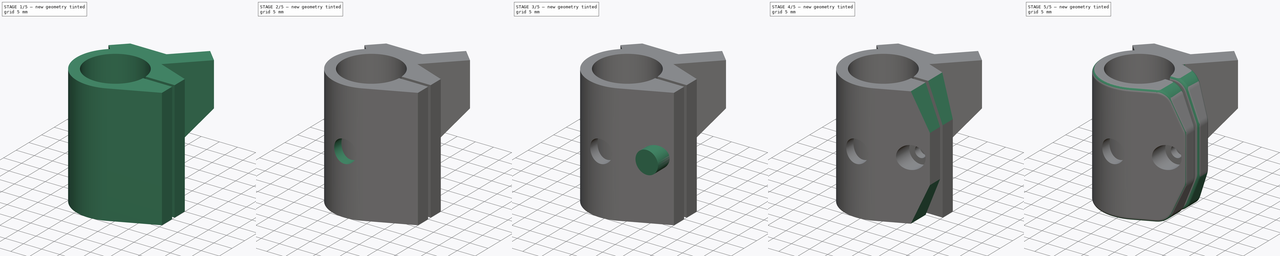
[diagram: build sequence overview — one tinted view per stage of 5, left to right]
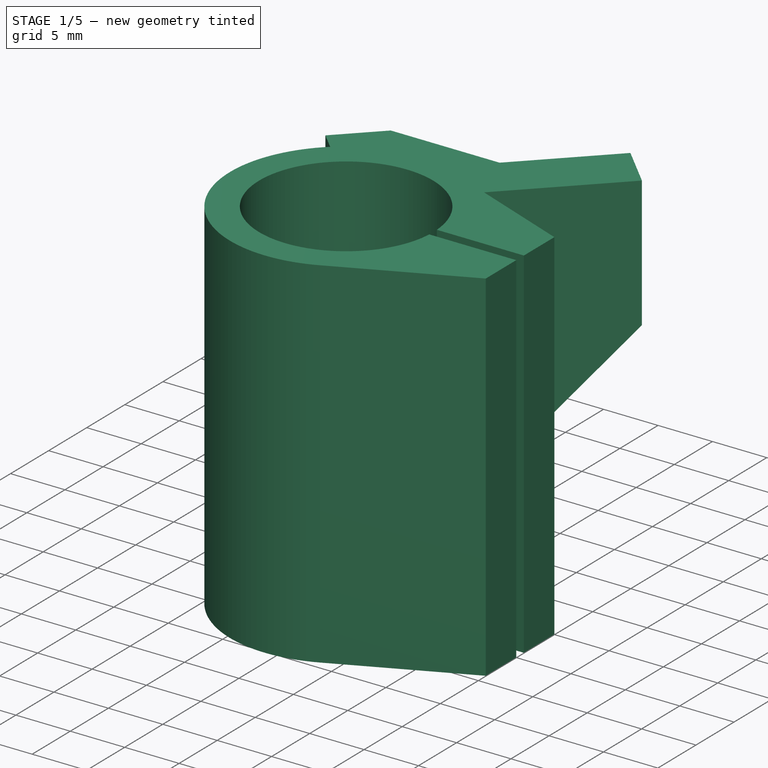
[diagram: stage 1 of 5 — iso view after this stage's code; geometry added in this stage tinted green]
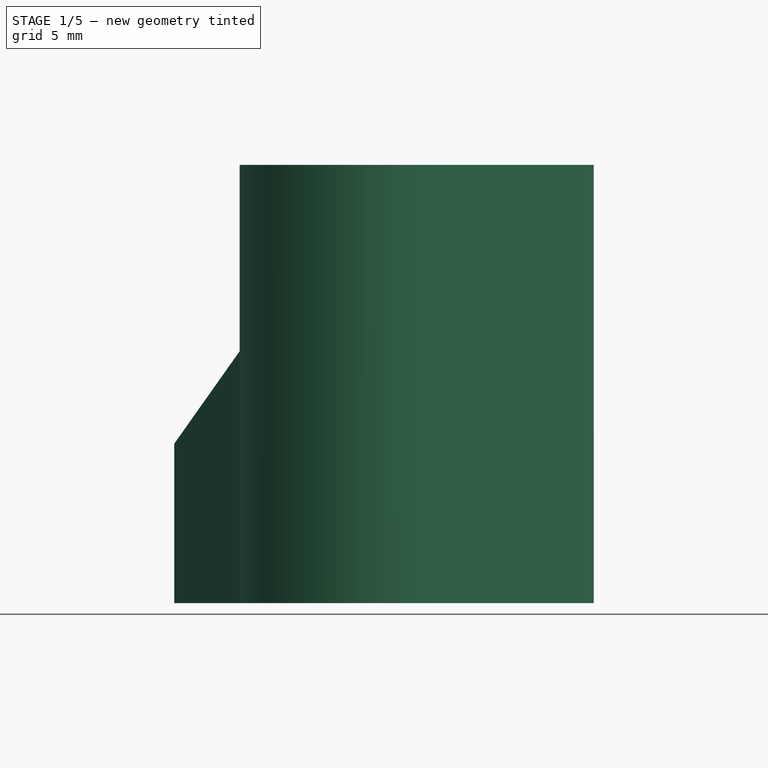
[diagram: stage 1 of 5 — front view after this stage's code; geometry added in this stage tinted green]
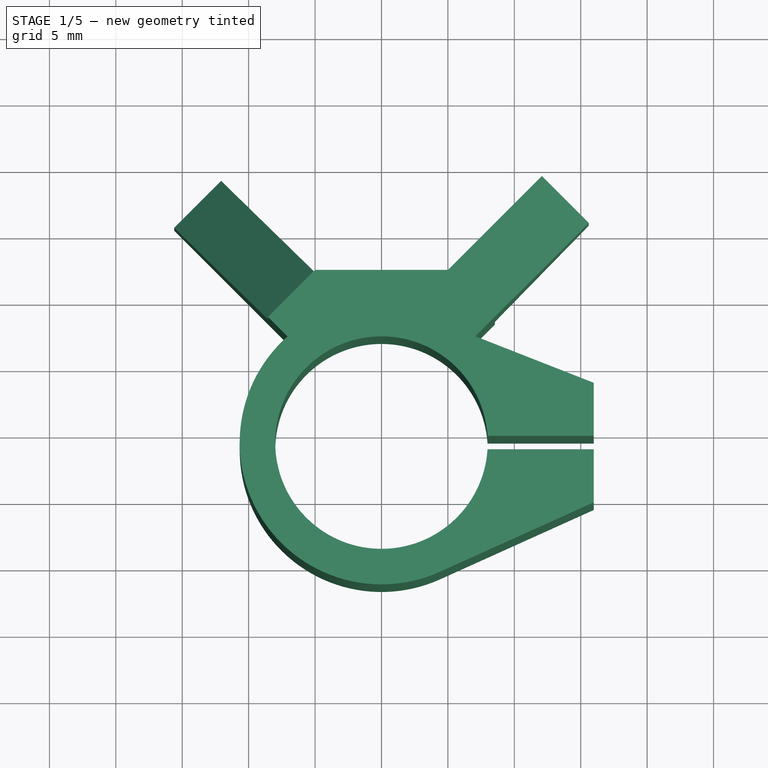
[diagram: stage 1 of 5 — top view after this stage's code; geometry added in this stage tinted green]
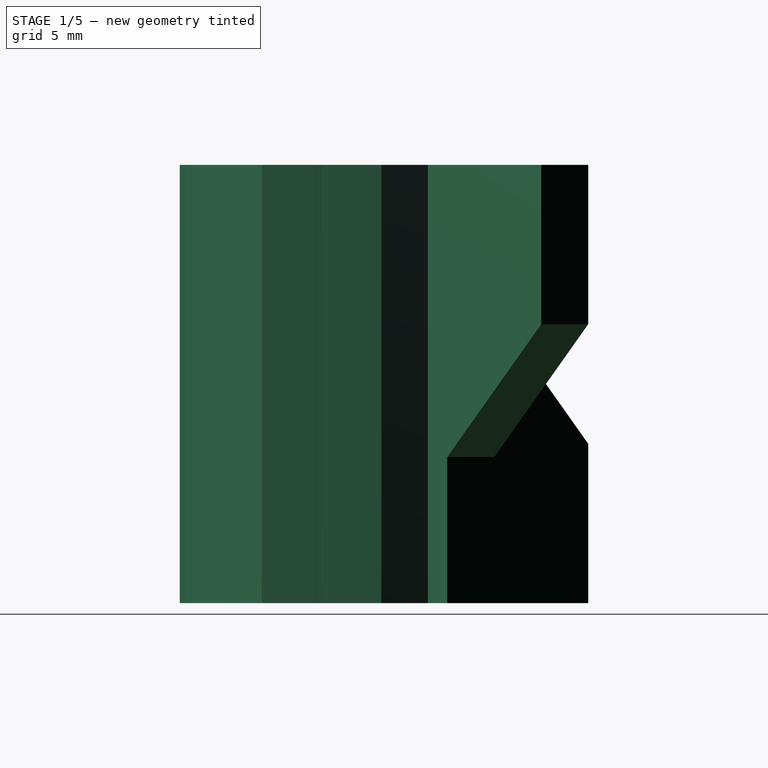
[diagram: stage 1 of 5 — right view after this stage's code; geometry added in this stage tinted green]
FCSTD DOCUMENT  (FreeCAD 0.16RUnknown)
Label: pen-mount.001
License: All rights reserved
LicenseURL: http://en.wikipedia.org/wiki/All_rights_reserved
objects: Sketcher::SketchObject×8, Part::Extrusion×4, PartDesign::Pocket×4, Part::Cut×3, Part::Chamfer×3, Part::Fillet×2
note: 28 computed .brp shape members not serialized (recipe doc carries the construction recipe); baked Part::Feature solids carry a one-line shape summary decoded from their .brp

FEATURE [Sketcher::SketchObject] Sketch
  sketch-geometry (21):
    g0: LineSegment StartX=-12.0711 StartY=9.14214 StartZ=0 EndX=-5 EndY=2.07107 EndZ=0
    g1: LineSegment StartX=-5 StartY=2.07107 StartZ=0 EndX=5 EndY=2.07107 EndZ=0
    g2: LineSegment StartX=5 StartY=2.07107 StartZ=0 EndX=12.0711 EndY=9.14214 EndZ=0
    g3: LineSegment StartX=12.0711 StartY=9.14214 StartZ=0 EndX=15.6066 EndY=5.6066 EndZ=0
    g4: LineSegment StartX=15.6066 StartY=5.6066 StartZ=0 EndX=7.07107 EndY=-2.92893 EndZ=0
    g5: LineSegment [constr] StartX=7.07107 StartY=-2.92893 StartZ=0 EndX=-7.07107 EndY=-2.92893 EndZ=0
    g6: LineSegment StartX=-7.07107 StartY=-2.92893 StartZ=0 EndX=-15.6066 EndY=5.6066 EndZ=0
    g7: LineSegment StartX=-15.6066 StartY=5.6066 StartZ=0 EndX=-12.0711 EndY=9.14214 EndZ=0
    g8: LineSegment [constr] StartX=0 StartY=2.07107 StartZ=0 EndX=0 EndY=-2.92893 EndZ=0
    g9: LineSegment [constr] StartX=-7.07107 StartY=-2.92893 StartZ=0 EndX=5 EndY=2.07107 EndZ=0
    g10: LineSegment [constr] StartX=-5 StartY=2.07107 StartZ=0 EndX=7.07107 EndY=-2.92893 EndZ=0
    g11: GeomPoint [constr] X=0 Y=0 Z=0
    g12: ArcOfCircle CenterX=0 CenterY=-10.9289 CenterZ=0 NormalX=0 NormalY=0 NormalZ=1 Radius=8 StartAngle=0.0625408 EndAngle=6.22064
    g13: LineSegment [constr] StartX=7.98436 StartY=-10.4289 StartZ=0 EndX=7.98436 EndY=-11.4289 EndZ=0
    g14: LineSegment StartX=7.98436 StartY=-11.4289 StartZ=0 EndX=15.9844 EndY=-11.4289 EndZ=0
    g15: LineSegment StartX=15.9844 StartY=-11.4289 StartZ=0 EndX=15.9844 EndY=-15.4289 EndZ=0
    g16: LineSegment StartX=15.9844 StartY=-15.4289 StartZ=0 EndX=4.39224 EndY=-20.6607 EndZ=0
    g17: LineSegment StartX=7.98436 StartY=-10.4289 StartZ=0 EndX=15.9844 EndY=-10.4289 EndZ=0
    g18: LineSegment StartX=15.9844 StartY=-10.4289 StartZ=0 EndX=15.9844 EndY=-6.42893 EndZ=0
    g19: LineSegment StartX=15.9844 StartY=-6.42893 StartZ=0 EndX=7.07107 EndY=-2.92893 EndZ=0
    g20: ArcOfCircle CenterX=0 CenterY=-10.9289 CenterZ=0 NormalX=0 NormalY=0 NormalZ=1 Radius=10.6771 StartAngle=2.29464 EndAngle=5.13635
  constraints (59):
    c: Coincident(g0,g1)
    c: Horizontal(g1)
    c: Coincident(g1,g2)
    c: Coincident(g2,g3)
    c: Coincident(g3,g4)
    c: Coincident(g4,g5)
    c: Horizontal(g5)
    c: Coincident(g5,g6)
    c: Coincident(g6,g7)
    c: Coincident(g0,g7)
    c: Perpendicular(g0,g7)
    c: Parallel(g0,g6)
    c: Parallel(g2,g4)
    c: Perpendicular(g3,g2)
    c: Equal(g0,g2)
    c: Equal(g7,g3)
    c: Angle(g1,g0) = 2.35619
    c: Angle(g2,g1) = 2.35619
    c: PointOnObject(g8,g1)
    c: Vertical(g8)
    c: PointOnObject(g8,g5)
    c: Equal(g8,g3)
    c: Coincident(g4,g10)
    c: Coincident(g5,g9)
    c: Coincident(g0,g10)
    c: Coincident(g1,g9)
    c: PointOnObject(g11,g9)
    c: PointOnObject(g11,g10)
    c: PointOnObject(g11,g8)
    c: Coincident(g11,g-1)
    c: DistanceX(g1,g1) = 10
    c: Distance(g3) = 5
    c: Distance(g0) = 10
    c: Vertical(g13)
    c: Coincident(g12,g13)
    c: Coincident(g12,g13)
    c: DistanceY(g13,g13) = 1
    c: Radius(g12) = 8
    c: PointOnObject(g12,g-2)
    c: Horizontal(g14)
    c: Coincident(g14,g15)
    c: Vertical(g15)
    c: Coincident(g15,g16)
    c: Horizontal(g17)
    c: Coincident(g17,g18)
    c: Vertical(g18)
    c: Coincident(g18,g19)
    c: Coincident(g12,g17)
    c: Coincident(g12,g14)
    c: Equal(g14,g17)
    c: Equal(g15,g18)
    c: Coincident(g4,g19)
    c: Coincident(g16,g20)
    c: Coincident(g12,g20)
    c: Coincident(g5,g20)
    c: PointOnObject(g8,g12)
    c: Tangent(g16,g20)
    c: DistanceY(g18,g18) = 4
    c: DistanceX(g14,g14) = 8
FEATURE [Part::Extrusion] Extrude
  Base = -> Sketch
  Dir = (0,0,33)
  Solid = true
FEATURE [Sketcher::SketchObject] Sketch001
  ExternalGeometry = -> [Extrude]
  Placement = pos=(-1.46447,-1.46447,0) rot=(0.281085,0.678598,0.678598;2.59356rad)
  Support = -> Extrude [Face3]
  sketch-geometry (4):
    g0: LineSegment StartX=15 StartY=33 StartZ=0 EndX=5 EndY=33 EndZ=0
    g1: LineSegment StartX=5 StartY=33 StartZ=0 EndX=5 EndY=22 EndZ=0
    g2: LineSegment StartX=5 StartY=22 StartZ=0 EndX=15 EndY=12 EndZ=0
    g3: LineSegment StartX=15 StartY=12 StartZ=0 EndX=15 EndY=33 EndZ=0
  constraints (11):
    c: Horizontal(g0)
    c: Coincident(g0,g1)
    c: Vertical(g1)
    c: Coincident(g1,g2)
    c: Coincident(g2,g3)
    c: Vertical(g3)
    c: Coincident(g0,g3)
    c: Coincident(g0,g-4)
    c: Coincident(g0,g-3)
    c: DistanceY(g-4,g2) = 12
    c: Angle(g-4,g2) = 0.785398
FEATURE [PartDesign::Pocket] Pocket
  Length = 5
  Sketch = -> Sketch001
  Type = 1
FEATURE [Sketcher::SketchObject] Sketch002
  ExternalGeometry = -> [Pocket]
  Placement = pos=(1.46447,-1.46447,0) rot=(-0.281085,0.678598,0.678598;3.68962rad)
  Support = -> Pocket [Face10]
  sketch-geometry (4):
    g0: LineSegment StartX=-15 StartY=0 StartZ=0 EndX=-5 EndY=0 EndZ=0
    g1: LineSegment StartX=-5 StartY=0 StartZ=0 EndX=-5 EndY=11 EndZ=0
    g2: LineSegment StartX=-5 StartY=11 StartZ=0 EndX=-15 EndY=21 EndZ=0
    g3: LineSegment StartX=-15 StartY=21 StartZ=0 EndX=-15 EndY=0 EndZ=0
  constraints (11):
    c: Horizontal(g0)
    c: Coincident(g0,g1)
    c: Vertical(g1)
    c: Coincident(g1,g2)
    c: Coincident(g2,g3)
    c: Vertical(g3)
    c: Coincident(g0,g3)
    c: Coincident(g0,g-3)
    c: Coincident(g0,g-4)
    c: Angle(g3,g2) = 0.785398
    c: DistanceY(g2,g-3) = 12
FEATURE [PartDesign::Pocket] Pocket001
  Length = 0
  Sketch = -> Sketch002
  Type = 3
  UpToFace = -> Pocket [Face12]
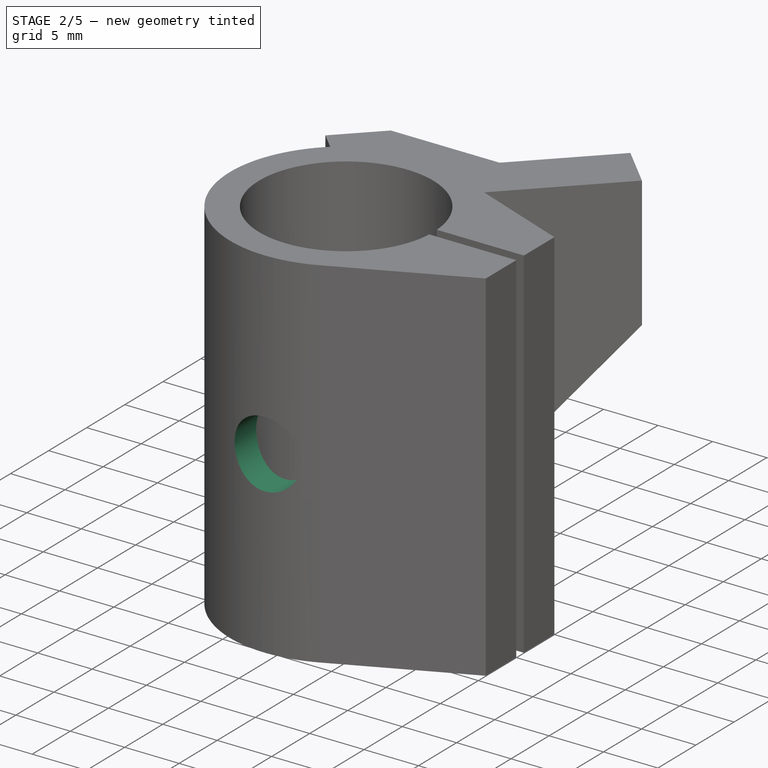
[diagram: stage 2 of 5 — iso view after this stage's code; geometry added in this stage tinted green]
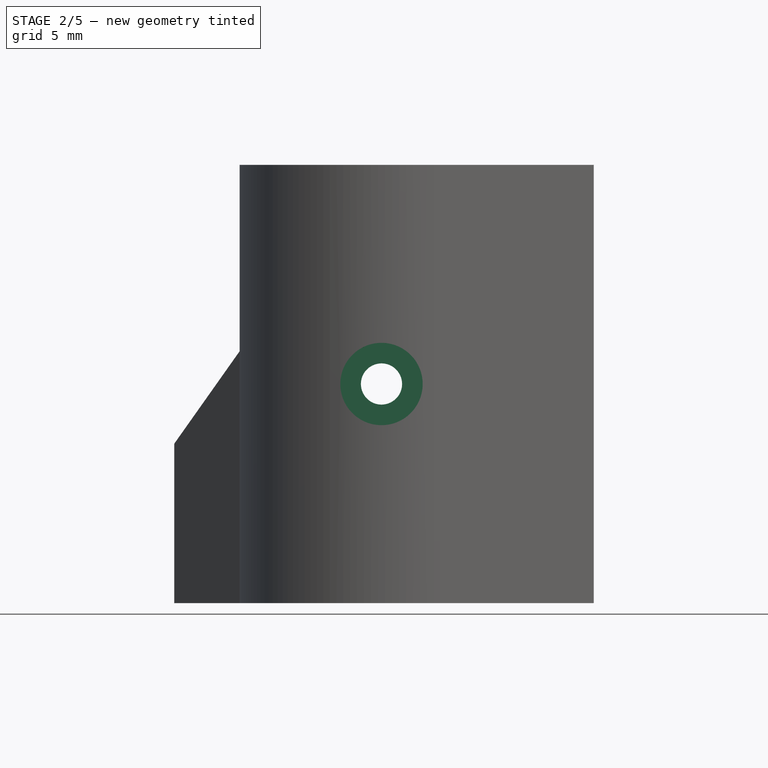
[diagram: stage 2 of 5 — front view after this stage's code; geometry added in this stage tinted green]
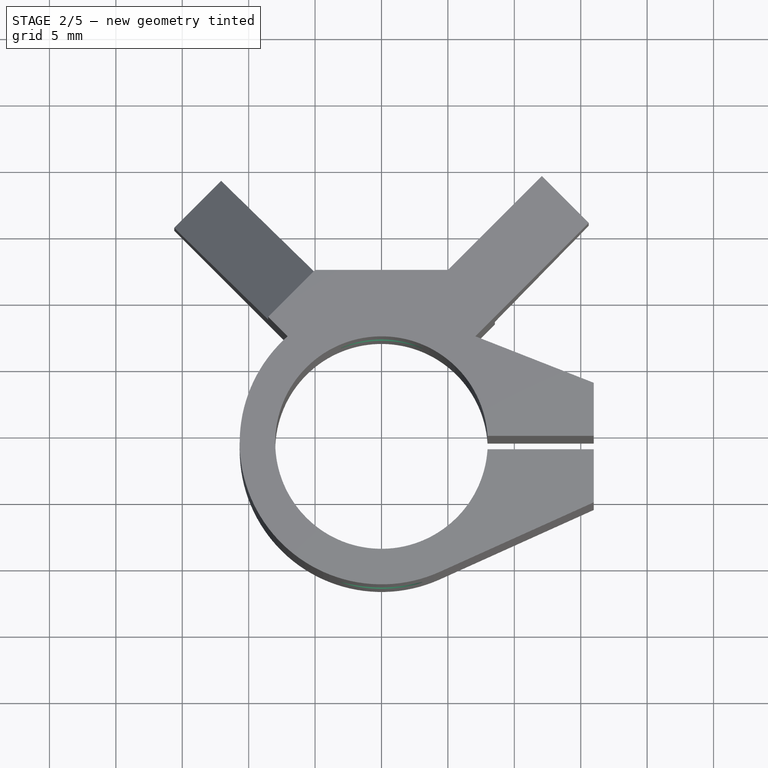
[diagram: stage 2 of 5 — top view after this stage's code; geometry added in this stage tinted green]
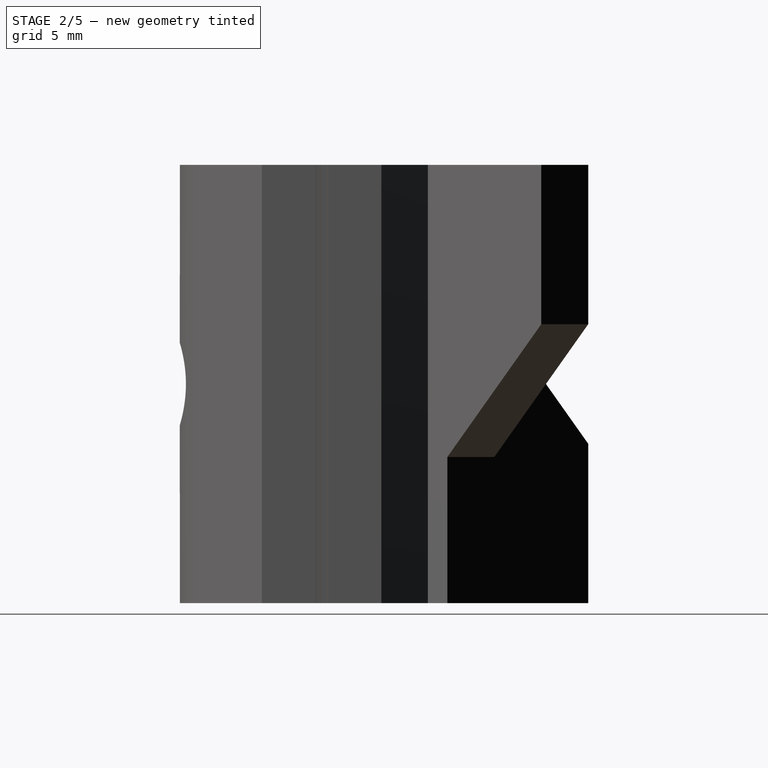
[diagram: stage 2 of 5 — right view after this stage's code; geometry added in this stage tinted green]
FEATURE [Sketcher::SketchObject] Sketch003
  ExternalGeometry = -> [Pocket001]
  Placement = pos=(0,2.07107,0) rot=(0,0.707107,0.707107;3.14159rad)
  Support = -> Pocket001 [Face17]
  sketch-geometry (3):
    g0: LineSegment [constr] StartX=-5 StartY=33 StartZ=0 EndX=0 EndY=16.5 EndZ=0
    g1: LineSegment [constr] StartX=0 StartY=16.5 StartZ=0 EndX=5 EndY=0 EndZ=0
    g2: Circle CenterX=0 CenterY=16.5 CenterZ=0 NormalX=0 NormalY=0 NormalZ=1 Radius=1.55
  constraints (7):
    c: Coincident(g0,g1)
    c: Coincident(g1,g-4)
    c: Coincident(g0,g-3)
    c: Equal(g0,g1)
    c: Parallel(g0,g1)
    c: Coincident(g0,g2)
    c: Radius(g2) = 1.55
FEATURE [PartDesign::Pocket] Pocket002
  Length = 0
  Sketch = -> Sketch003
  Type = 3
  UpToFace = -> Pocket001 [Face11]
FEATURE [Sketcher::SketchObject] Sketch004
  ExternalGeometry = -> [Pocket002]
  Placement = pos=(0,2.07107,0) rot=(0,0.707107,0.707107;3.14159rad)
  Support = -> Pocket002 [Face17]
  sketch-geometry (1):
    g0: Circle CenterX=0 CenterY=16.5 CenterZ=0 NormalX=0 NormalY=0 NormalZ=1 Radius=3.1
  constraints (2):
    c: Coincident(g0,g-3)
    c: Radius(g0) = 3.1
FEATURE [Part::Extrusion] Extrude001
  Base = -> Sketch004
  Dir = (0,-25,0)
  Placement = pos=(0,-2,0) rot=(0,0,1;0rad)
  Solid = true
FEATURE [Part::Cut] Cut
  Base = -> Pocket002
  Tool = -> Extrude001
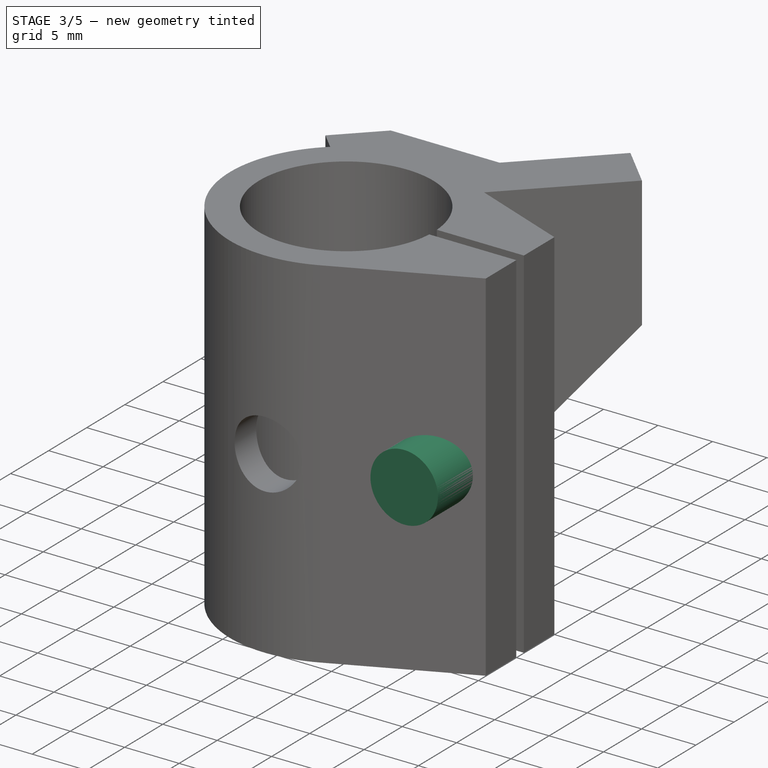
[diagram: stage 3 of 5 — iso view after this stage's code; geometry added in this stage tinted green]
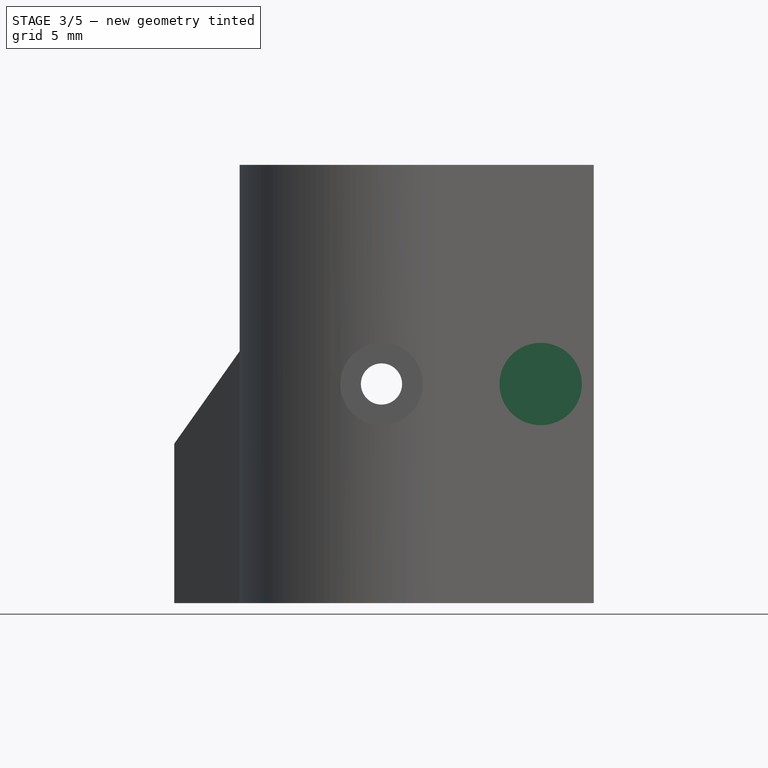
[diagram: stage 3 of 5 — front view after this stage's code; geometry added in this stage tinted green]
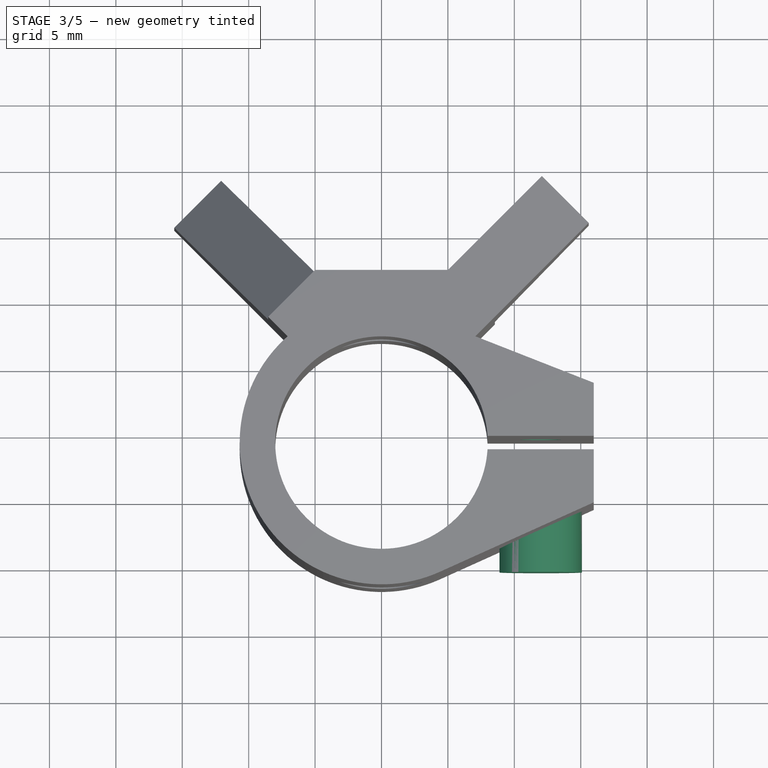
[diagram: stage 3 of 5 — top view after this stage's code; geometry added in this stage tinted green]
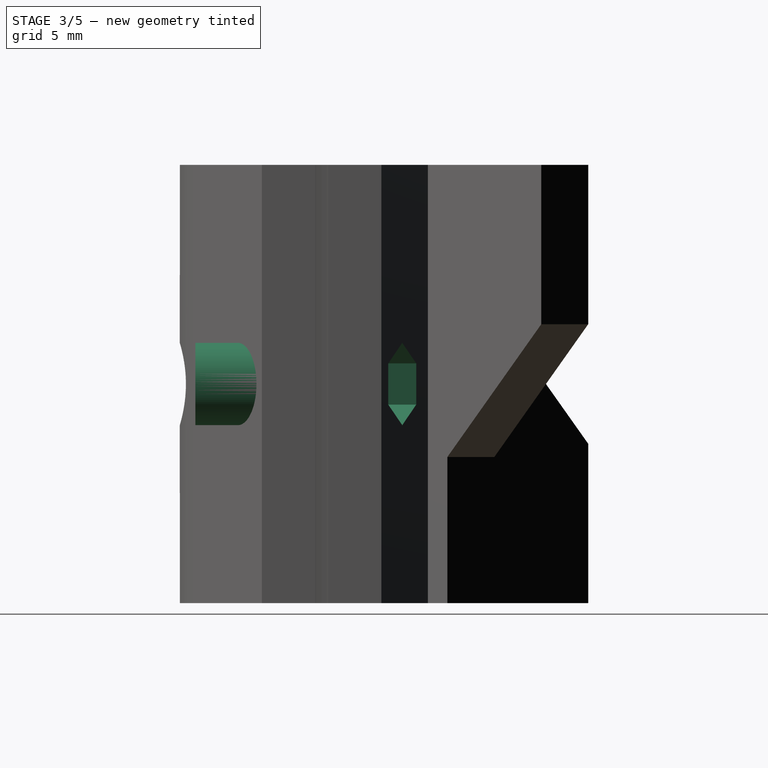
[diagram: stage 3 of 5 — right view after this stage's code; geometry added in this stage tinted green]
FEATURE [Sketcher::SketchObject] Sketch005
  ExternalGeometry = -> [Cut]
  Placement = pos=(0,-10.4289,0) rot=(1,0,0;1.5708rad)
  Support = -> Cut [Face12]
  sketch-geometry (3):
    g0: LineSegment [constr] StartX=7.98436 StartY=0 StartZ=0 EndX=11.9844 EndY=16.5 EndZ=0
    g1: LineSegment [constr] StartX=11.9844 StartY=16.5 StartZ=0 EndX=15.9844 EndY=33 EndZ=0
    g2: Circle CenterX=11.9844 CenterY=16.5 CenterZ=0 NormalX=0 NormalY=0 NormalZ=1 Radius=1.55
  constraints (7):
    c: Coincident(g0,g1)
    c: Coincident(g1,g-3)
    c: Coincident(g0,g-4)
    c: Equal(g0,g1)
    c: Parallel(g0,g1)
    c: Coincident(g0,g2)
    c: Radius(g2) = 1.55
FEATURE [PartDesign::Pocket] Pocket003
  Length = 15
  Midplane = true
  Sketch = -> Sketch005
  Type = 0
FEATURE [Sketcher::SketchObject] Sketch006
  ExternalGeometry = -> [Pocket003]
  Placement = pos=(0,-10.4289,0) rot=(1,0,0;1.5708rad)
  Support = -> Pocket003 [Face12]
  sketch-geometry (7):
    g0: LineSegment StartX=11.9844 StartY=19.6 StartZ=0 EndX=9.29968 EndY=18.05 EndZ=0
    g1: LineSegment StartX=9.29968 StartY=18.05 StartZ=0 EndX=9.29968 EndY=14.95 EndZ=0
    g2: LineSegment StartX=9.29968 StartY=14.95 StartZ=0 EndX=11.9844 EndY=13.4 EndZ=0
    g3: LineSegment StartX=11.9844 StartY=13.4 StartZ=0 EndX=14.669 EndY=14.95 EndZ=0
    g4: LineSegment StartX=14.669 StartY=14.95 StartZ=0 EndX=14.669 EndY=18.05 EndZ=0
    g5: LineSegment StartX=14.669 StartY=18.05 StartZ=0 EndX=11.9844 EndY=19.6 EndZ=0
    g6: Circle [constr] CenterX=11.9844 CenterY=16.5 CenterZ=0 NormalX=0 NormalY=0 NormalZ=1 Radius=3.1
  constraints (16):
    c: Coincident(g0,g1)
    c: Coincident(g1,g2)
    c: Coincident(g2,g3)
    c: Coincident(g3,g4)
    c: Coincident(g4,g5)
    c: Coincident(g5,g0)
    c: Equal(g0, g1-g5) x5
    c: PointOnObject(g0,g6)
    c: PointOnObject(g1,g6)
    c: PointOnObject(g2,g6)
    c: PointOnObject(g3,g6)
    c: PointOnObject(g4,g6)
    c: PointOnObject(g5,g6)
    c: Vertical(g4)
    c: Coincident(g6,g-3)
    c: Radius(g6) = 3.1
FEATURE [Sketcher::SketchObject] Sketch007
  ExternalGeometry = -> [Pocket003]
  Placement = pos=(0,-11.4289,0) rot=(0,0.707107,0.707107;3.14159rad)
  Support = -> Pocket003 [Face10]
  sketch-geometry (1):
    g0: Circle CenterX=-11.9844 CenterY=16.5 CenterZ=0 NormalX=0 NormalY=0 NormalZ=1 Radius=3.1
  constraints (2):
    c: Coincident(g0,g-3)
    c: Radius(g0) = 3.1
FEATURE [Part::Extrusion] Extrude002
  Base = -> Sketch006
  Dir = (0,7,0)
  Placement = pos=(0,2,0) rot=(0,0,1;0rad)
  Solid = true
FEATURE [Part::Extrusion] Extrude003
  Base = -> Sketch007
  Dir = (0,-7,0)
  Placement = pos=(0,-2,0) rot=(0,0,1;0rad)
  Solid = true
FEATURE [Part::Cut] Cut001
  Base = -> Pocket003
  Tool = -> Extrude002
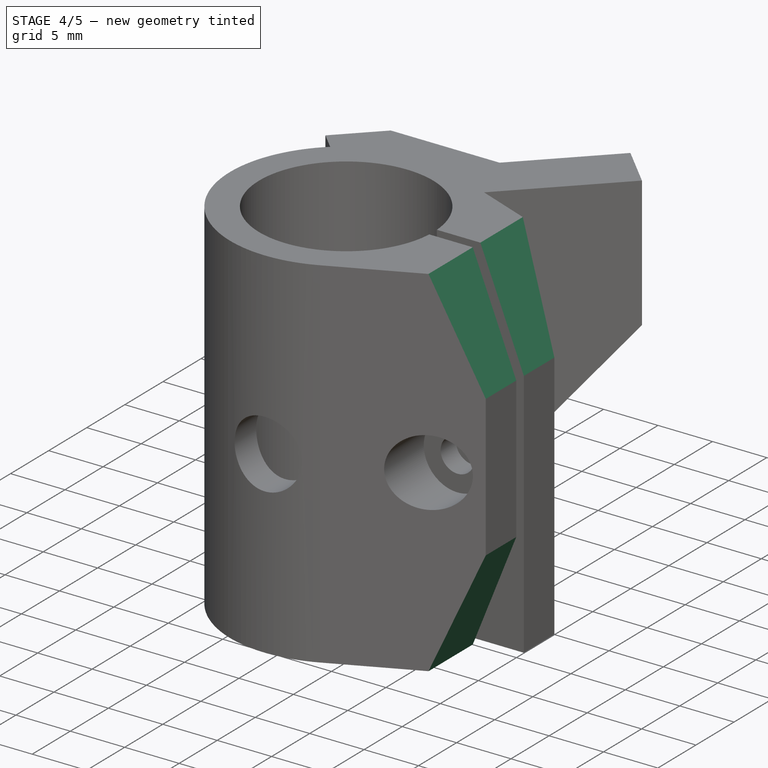
[diagram: stage 4 of 5 — iso view after this stage's code; geometry added in this stage tinted green]
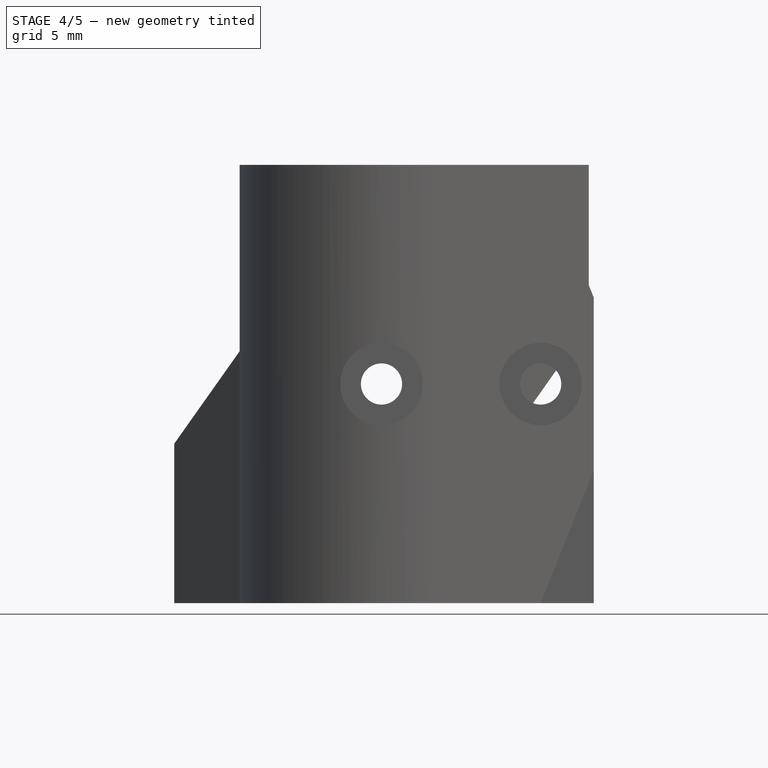
[diagram: stage 4 of 5 — front view after this stage's code; geometry added in this stage tinted green]
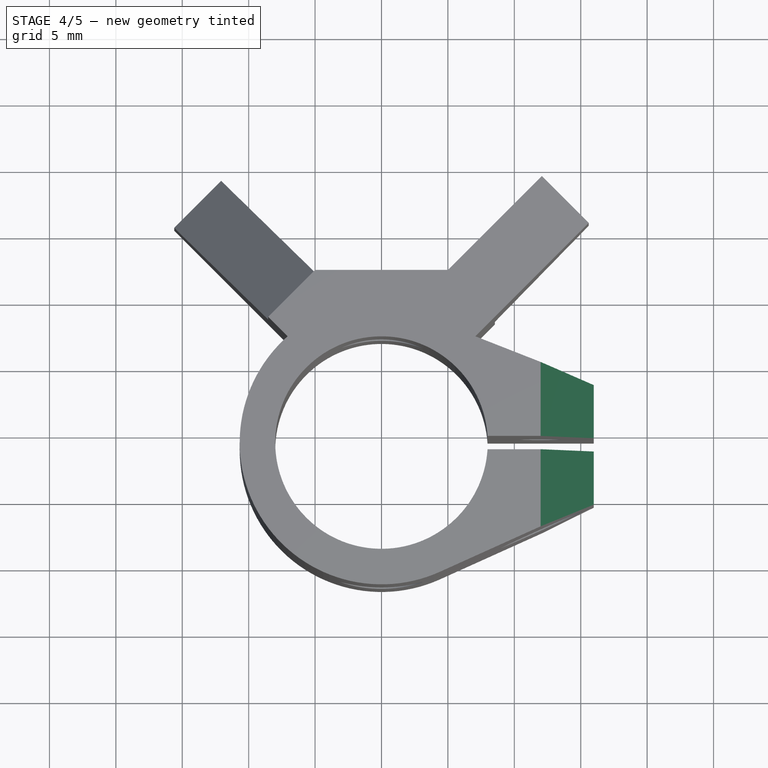
[diagram: stage 4 of 5 — top view after this stage's code; geometry added in this stage tinted green]
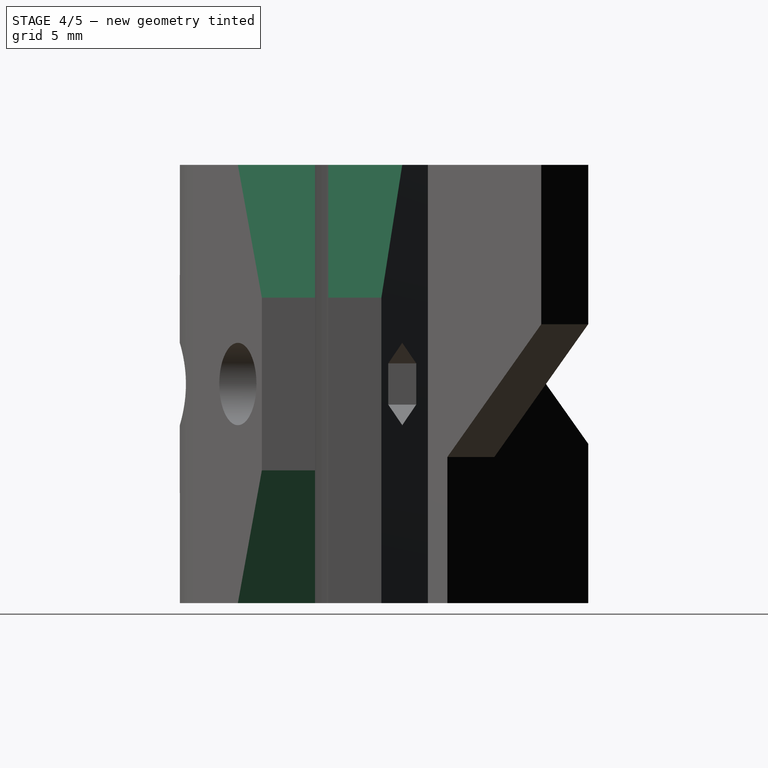
[diagram: stage 4 of 5 — right view after this stage's code; geometry added in this stage tinted green]
FEATURE [Part::Cut] Cut002
  Base = -> Cut001
  Tool = -> Extrude003
FEATURE [Part::Chamfer] Chamfer
  Base = -> Cut002
  Edges = 2 edges: [Edge28 r1=4 r2=10,Edge32 r1=4 r2=10]
FEATURE [Part::Chamfer] Chamfer001
  Base = -> Chamfer
  Edges = 1 edges: [Edge66 r1=10 r2=4]
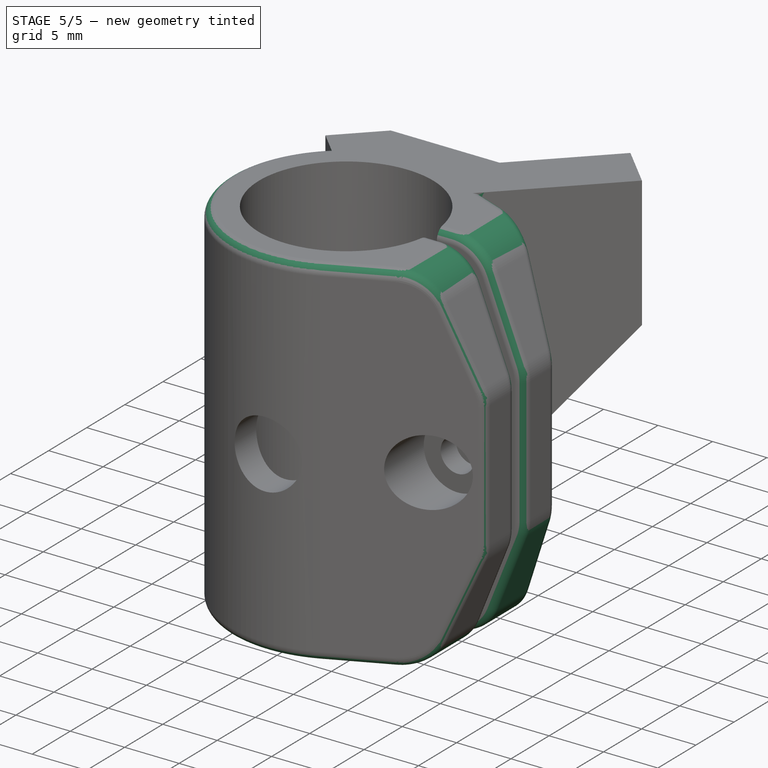
[diagram: stage 5 of 5 — iso view after this stage's code; geometry added in this stage tinted green]
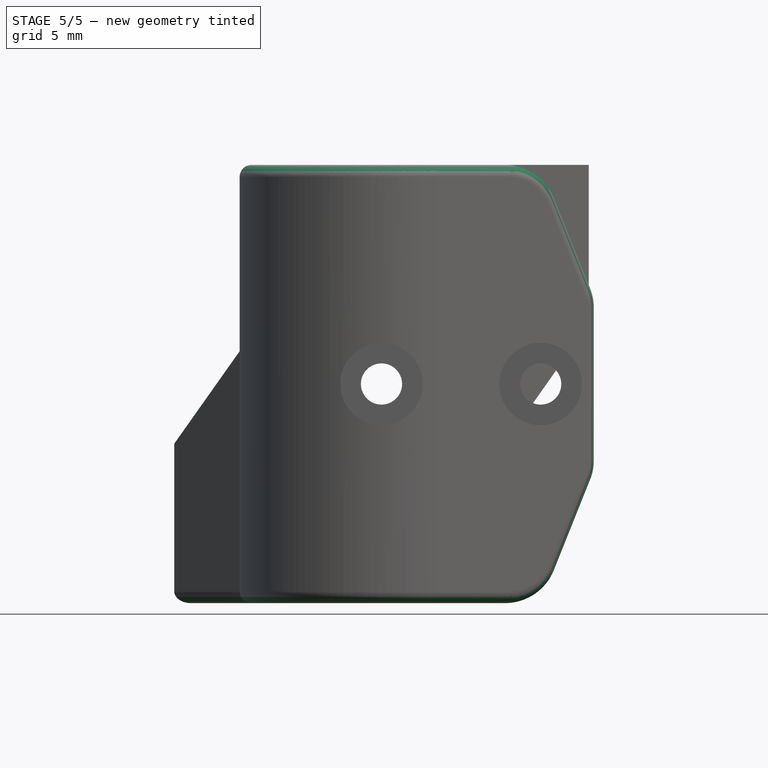
[diagram: stage 5 of 5 — front view after this stage's code; geometry added in this stage tinted green]
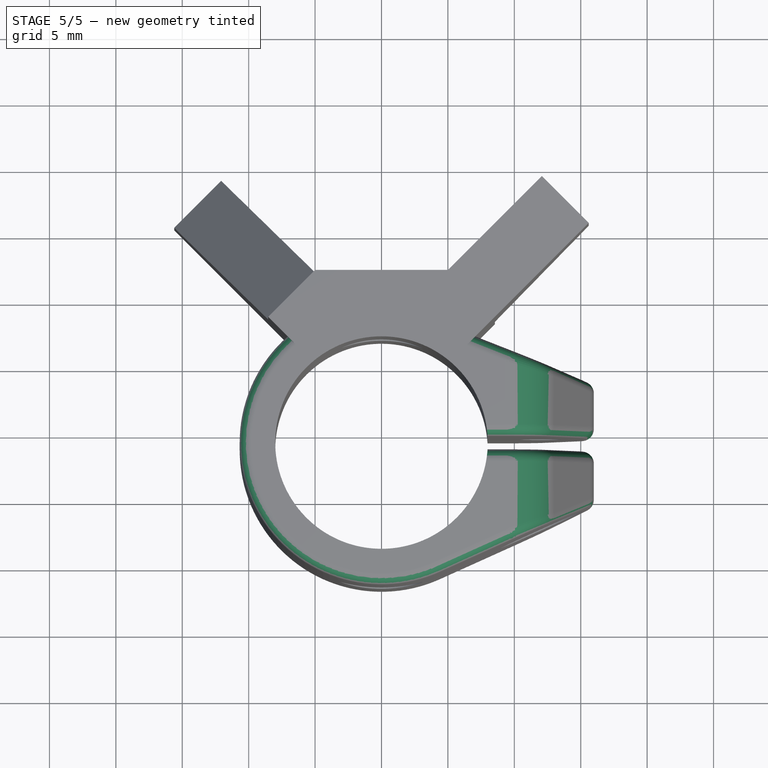
[diagram: stage 5 of 5 — top view after this stage's code; geometry added in this stage tinted green]
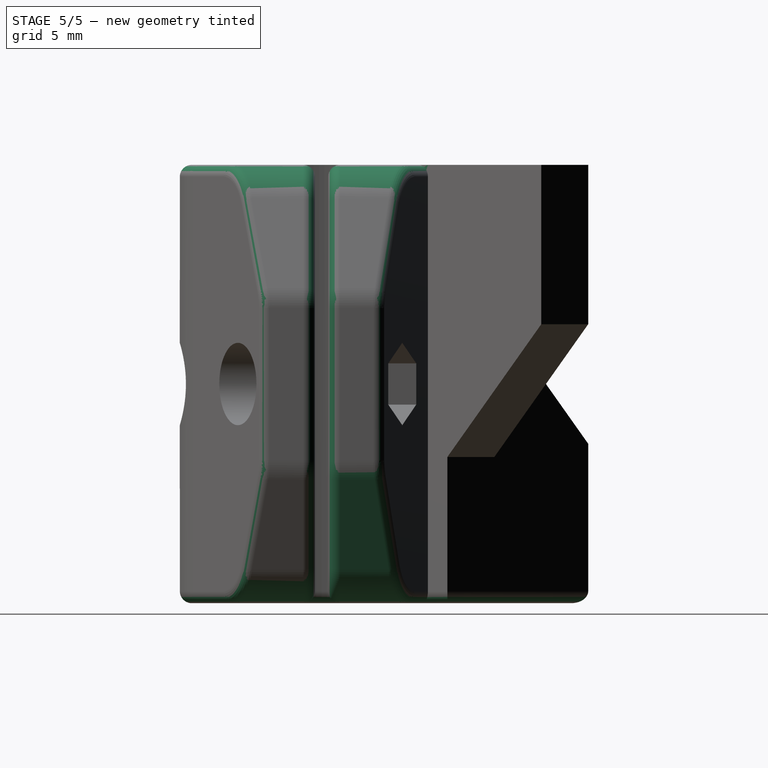
[diagram: stage 5 of 5 — right view after this stage's code; geometry added in this stage tinted green]
FEATURE [Part::Chamfer] Chamfer002
  Base = -> Chamfer001
  Edges = 1 edges: [Edge22 r1=4 r2=10]
FEATURE [Part::Fillet] Fillet
  Base = -> Chamfer002
  Edges = 8 edges r=4: [Edge2,Edge7,Edge21,Edge46,Edge70,Edge71,Edge72,Edge93]
FEATURE [Part::Fillet] Fillet001
  Base = -> Fillet
  Edges = 12 edges r=0.9: [Edge1,Edge3,Edge4,Edge5,Edge6,Edge8,Edge9,Edge10,Edge11,Edge12,Edge13,Edge14]
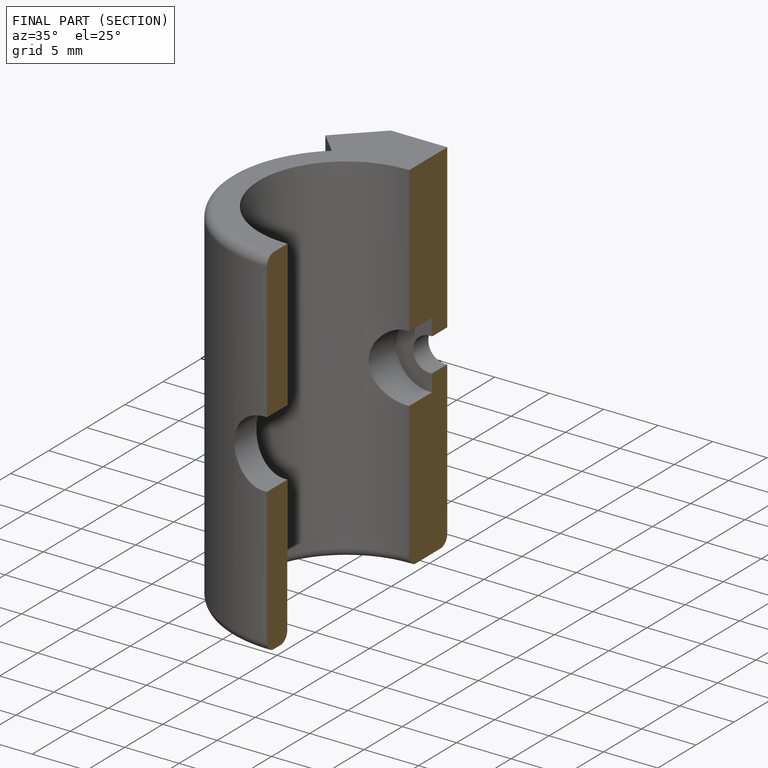
[diagram: finished part — half-section view (interior)]
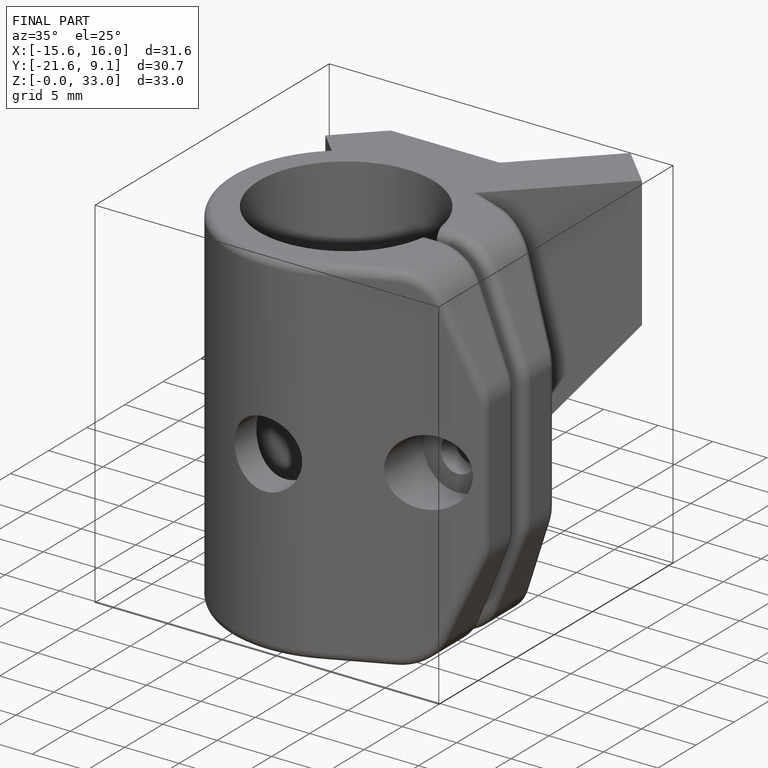
[diagram: finished part — iso view with bounding-box wireframe]
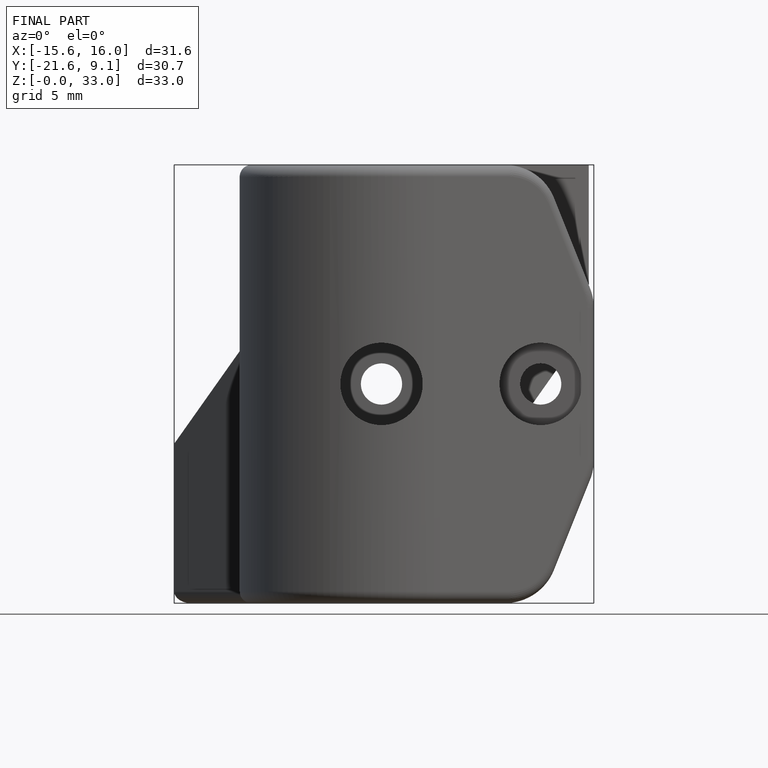
[diagram: finished part — front view with bounding-box wireframe]
